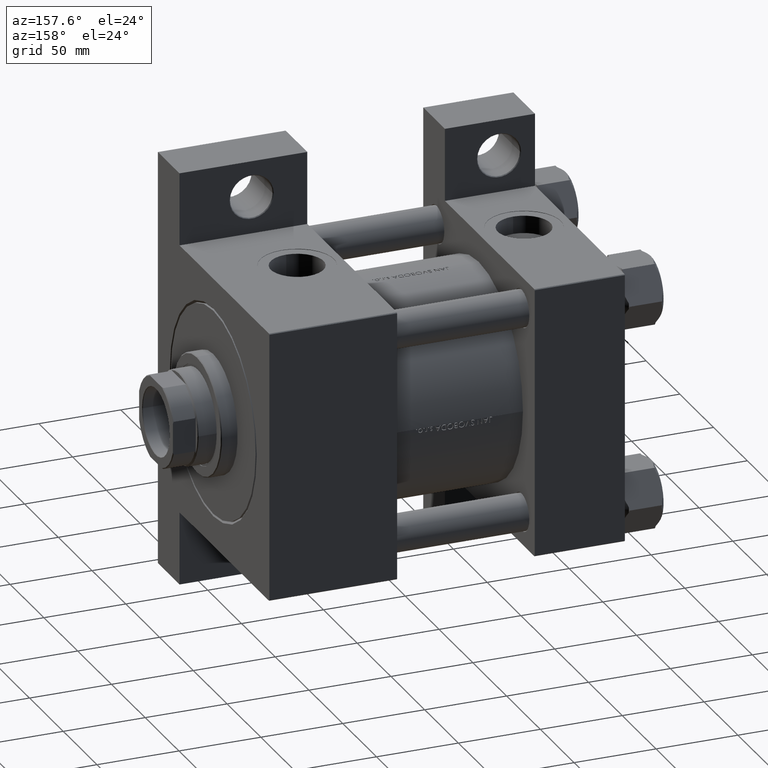
[diagram: clean part render]
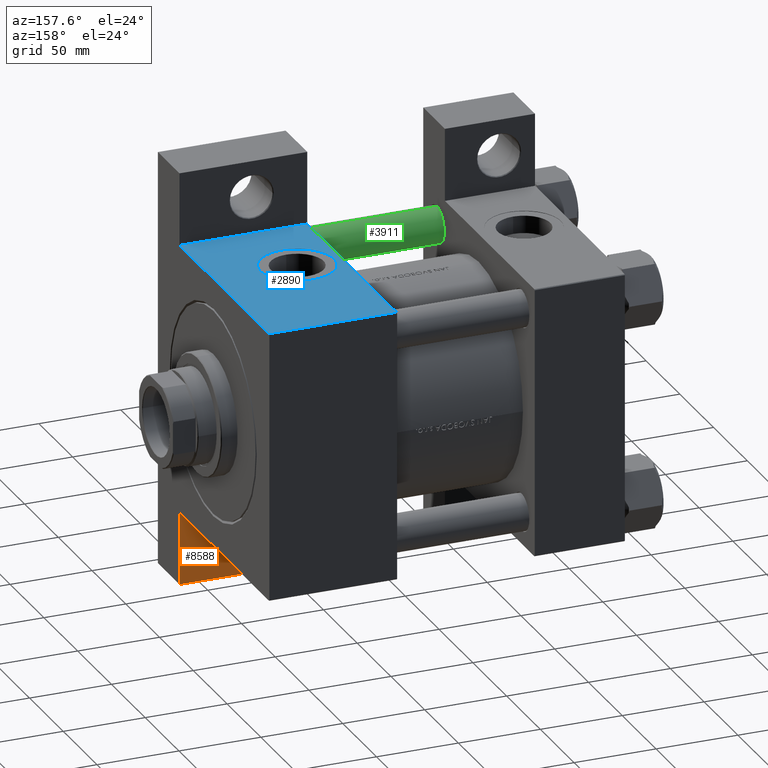
[diagram: same view with three faces highlighted in distinct colors, each labeled with its STEP entity id]
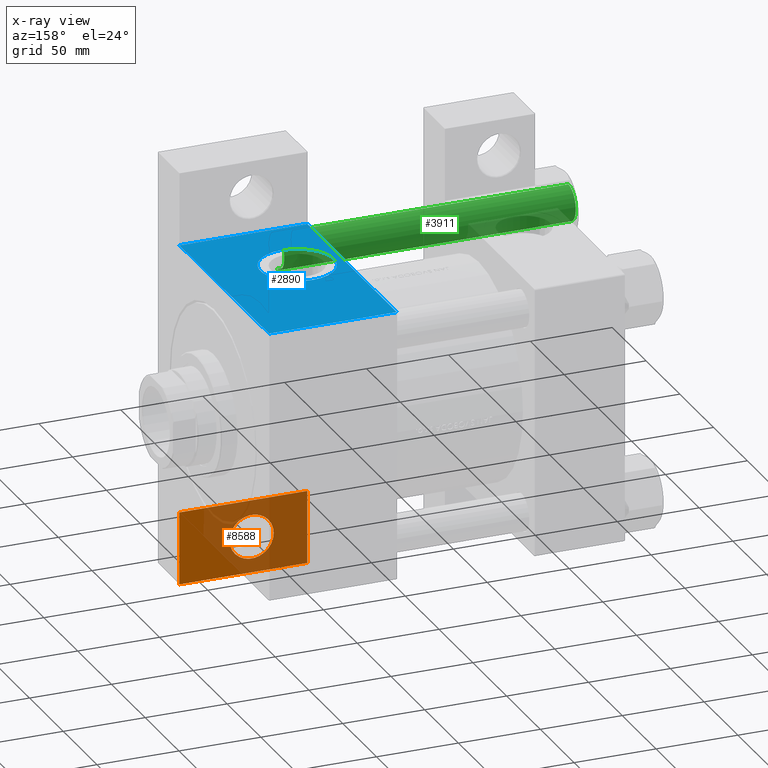
[diagram: x-ray of the same camera — body ghosted, the three highlighted faces saturated]
A machine part, auxiliary view with three faces highlighted in distinct colors.
The next image is the same camera in x-ray (body ghosted, the three faces saturated) — at least one of them is partly hidden behind the body in this view.
Their STEP definitions:

[orange] entity #8588 — the highlighted planar face has unit normal (0, 1, 0).
#34 = VERTEX_POINT ( 'NONE', #45799 ) ;
#143 = ORIENTED_EDGE ( 'NONE', *, *, #10108, .F. ) ;
#478 = LINE ( 'NONE', #10938, #21156 ) ;
#621 = ORIENTED_EDGE ( 'NONE', *, *, #12801, .T. ) ;
#1192 = DIRECTION ( 'NONE',  ( 6.237208003512117811E-16, 1.000000000000000000, -0.000000000000000000 ) ) ;
#1433 = CARTESIAN_POINT ( 'NONE',  ( 139.0000000000000284, 127.0000000000000000, -50.50000000000002842 ) ) ;
#2474 = DIRECTION ( 'NONE',  ( -0.000000000000000000, -0.000000000000000000, -1.000000000000000000 ) ) ;
#4309 = LINE ( 'NONE', #19132, #37377 ) ;
#4707 = AXIS2_PLACEMENT_3D ( 'NONE', #25398, #36108, #11048 ) ;
#5573 = DIRECTION ( 'NONE',  ( 1.000000000000000000, 0.000000000000000000, 0.000000000000000000 ) ) ;
#7390 = CARTESIAN_POINT ( 'NONE',  ( 217.0000000000000568, 82.49999999999995737, -50.50000000000002842 ) ) ;
#8265 = ORIENTED_EDGE ( 'NONE', *, *, #30773, .F. ) ;
#8588 = ADVANCED_FACE ( 'NONE', ( #10568, #48024 ), #29043, .T. ) ;
#9380 = CARTESIAN_POINT ( 'NONE',  ( 159.5005000000000166, 104.9999999999999858, -50.50000000000002842 ) ) ;
#9711 = CARTESIAN_POINT ( 'NONE',  ( 139.0000000000000284, 127.0000000000000000, -50.50000000000002842 ) ) ;
#10108 = EDGE_CURVE ( 'NONE', #34, #31720, #4309, .T. ) ;
#10568 = FACE_BOUND ( 'NONE', #34637, .T. ) ;
#10938 = CARTESIAN_POINT ( 'NONE',  ( 139.0000000000000284, 127.0000000000000000, -50.50000000000002842 ) ) ;
#11048 = DIRECTION ( 'NONE',  ( 1.000000000000000000, 0.000000000000000000, -0.000000000000000000 ) ) ;
#11717 = AXIS2_PLACEMENT_3D ( 'NONE', #24040, #34511, #5573 ) ;
#12655 = EDGE_LOOP ( 'NONE', ( #41618, #8265, #143, #13359 ) ) ;
#12801 = EDGE_CURVE ( 'NONE', #46655, #42610, #30343, .T. ) ;
#13359 = ORIENTED_EDGE ( 'NONE', *, *, #16805, .F. ) ;
#13633 = VECTOR ( 'NONE', #18195, 1000.000000000000000 ) ;
#16805 = EDGE_CURVE ( 'NONE', #44513, #34, #478, .T. ) ;
#16864 = EDGE_CURVE ( 'NONE', #29040, #44513, #26958, .T. ) ;
#18195 = DIRECTION ( 'NONE',  ( -1.000000000000000000, 7.116814260417666541E-16, -0.000000000000000000 ) ) ;
#18433 = CARTESIAN_POINT ( 'NONE',  ( 139.0000000000000000, 82.50000000000001421, -50.50000000000002842 ) ) ;
#19132 = CARTESIAN_POINT ( 'NONE',  ( 217.0000000000000568, 126.9999999999999432, -50.50000000000002842 ) ) ;
#21156 = VECTOR ( 'NONE', #44250, 1000.000000000000000 ) ;
#21177 = DIRECTION ( 'NONE',  ( 1.000000000000000000, 0.000000000000000000, 0.000000000000000000 ) ) ;
#24040 = CARTESIAN_POINT ( 'NONE',  ( 173.0000000000000284, 104.9999999999999858, -50.50000000000002842 ) ) ;
#24624 = CARTESIAN_POINT ( 'NONE',  ( 139.0000000000000000, 82.50000000000001421, -50.50000000000002842 ) ) ;
#25398 = CARTESIAN_POINT ( 'NONE',  ( 0.000000000000000000, 0.000000000000000000, -50.50000000000002842 ) ) ;
#25586 = EDGE_CURVE ( 'NONE', #42610, #46655, #41624, .T. ) ;
#26445 = LINE ( 'NONE', #18433, #13633 ) ;
#26958 = LINE ( 'NONE', #1433, #37508 ) ;
#29040 = VERTEX_POINT ( 'NONE', #24624 ) ;
#29043 = PLANE ( 'NONE',  #4707 ) ;
#30343 = CIRCLE ( 'NONE', #11717, 13.49949999999999761 ) ;
#30773 = EDGE_CURVE ( 'NONE', #31720, #29040, #26445, .T. ) ;
#31626 = CARTESIAN_POINT ( 'NONE',  ( 173.0000000000000284, 104.9999999999999858, -50.50000000000002842 ) ) ;
#31720 = VERTEX_POINT ( 'NONE', #7390 ) ;
#33089 = AXIS2_PLACEMENT_3D ( 'NONE', #31626, #2474, #21177 ) ;
#34511 = DIRECTION ( 'NONE',  ( -0.000000000000000000, -0.000000000000000000, -1.000000000000000000 ) ) ;
#34637 = EDGE_LOOP ( 'NONE', ( #36106, #621 ) ) ;
#36106 = ORIENTED_EDGE ( 'NONE', *, *, #25586, .T. ) ;
#36108 = DIRECTION ( 'NONE',  ( 0.000000000000000000, 0.000000000000000000, 1.000000000000000000 ) ) ;
#37147 = DIRECTION ( 'NONE',  ( 0.000000000000000000, -1.000000000000000000, 0.000000000000000000 ) ) ;
#37377 = VECTOR ( 'NONE', #37147, 1000.000000000000000 ) ;
#37508 = VECTOR ( 'NONE', #1192, 1000.000000000000000 ) ;
#38029 = CARTESIAN_POINT ( 'NONE',  ( 186.4995000000000118, 104.9999999999999858, -50.50000000000002842 ) ) ;
#41618 = ORIENTED_EDGE ( 'NONE', *, *, #16864, .F. ) ;
#41624 = CIRCLE ( 'NONE', #33089, 13.49949999999999761 ) ;
#42610 = VERTEX_POINT ( 'NONE', #38029 ) ;
#44250 = DIRECTION ( 'NONE',  ( 1.000000000000000000, -7.116814260417667527E-16, 0.000000000000000000 ) ) ;
#44513 = VERTEX_POINT ( 'NONE', #9711 ) ;
#45799 = CARTESIAN_POINT ( 'NONE',  ( 217.0000000000000568, 126.9999999999999432, -50.50000000000002842 ) ) ;
#46655 = VERTEX_POINT ( 'NONE', #9380 ) ;
#48024 = FACE_OUTER_BOUND ( 'NONE', #12655, .T. ) ;

[blue] entity #2890 — the highlighted planar face has unit normal (0, -0, -1).
#819 = CARTESIAN_POINT ( 'NONE',  ( 217.0000000000000284, -82.49999999999997158, 82.49999999999997158 ) ) ;
#883 = EDGE_CURVE ( 'NONE', #4520, #26915, #39291, .T. ) ;
#915 = LINE ( 'NONE', #15741, #5143 ) ;
#2221 = CARTESIAN_POINT ( 'NONE',  ( 166.0000000000000000, -82.49999999999998579, 1.387778780781445676E-14 ) ) ;
#2341 = CARTESIAN_POINT ( 'NONE',  ( 217.0000000000000284, -82.49999999999997158, 82.49999999999997158 ) ) ;
#2688 = VECTOR ( 'NONE', #17164, 1000.000000000000000 ) ;
#2805 = VERTEX_POINT ( 'NONE', #3751 ) ;
#2890 = ADVANCED_FACE ( 'NONE', ( #27307, #15876 ), #46030, .F. ) ;
#3751 = CARTESIAN_POINT ( 'NONE',  ( 139.0000000000000000, -82.49999999999997158, -50.50000000000002842 ) ) ;
#4520 = VERTEX_POINT ( 'NONE', #22304 ) ;
#5143 = VECTOR ( 'NONE', #27160, 1000.000000000000000 ) ;
#6811 = VERTEX_POINT ( 'NONE', #44536 ) ;
#7878 = VECTOR ( 'NONE', #22308, 1000.000000000000000 ) ;
#8357 = DIRECTION ( 'NONE',  ( 0.000000000000000000, 1.000000000000000000, -1.682156097916903834E-16 ) ) ;
#8876 = ORIENTED_EDGE ( 'NONE', *, *, #883, .F. ) ;
#10067 = EDGE_CURVE ( 'NONE', #2805, #26915, #14115, .T. ) ;
#10708 = DIRECTION ( 'NONE',  ( 0.000000000000000000, 0.000000000000000000, -1.000000000000000000 ) ) ;
#11094 = ORIENTED_EDGE ( 'NONE', *, *, #10067, .T. ) ;
#11127 = CARTESIAN_POINT ( 'NONE',  ( 139.0000000000000000, -82.49999999999997158, -50.50000000000002842 ) ) ;
#12474 = EDGE_CURVE ( 'NONE', #6811, #47042, #45187, .T. ) ;
#12710 = DIRECTION ( 'NONE',  ( 0.000000000000000000, 1.682156097916903834E-16, 1.000000000000000000 ) ) ;
#14115 = LINE ( 'NONE', #11127, #7878 ) ;
#15741 = CARTESIAN_POINT ( 'NONE',  ( 217.0000000000000284, -82.49999999999997158, 82.00000000000002842 ) ) ;
#15876 = FACE_OUTER_BOUND ( 'NONE', #46747, .T. ) ;
#17164 = DIRECTION ( 'NONE',  ( 0.000000000000000000, -1.682156097916903834E-16, -1.000000000000000000 ) ) ;
#17352 = CARTESIAN_POINT ( 'NONE',  ( 166.0000000000000000, -82.49999999999998579, 1.387778780781445676E-14 ) ) ;
#17941 = VERTEX_POINT ( 'NONE', #33774 ) ;
#19354 = ORIENTED_EDGE ( 'NONE', *, *, #43077, .T. ) ;
#21115 = LINE ( 'NONE', #27929, #44170 ) ;
#22304 = CARTESIAN_POINT ( 'NONE',  ( 217.0000000000000284, -82.49999999999997158, 82.00000000000002842 ) ) ;
#22308 = DIRECTION ( 'NONE',  ( 1.000000000000000000, -1.779203565104416882E-16, 0.000000000000000000 ) ) ;
#22326 = CARTESIAN_POINT ( 'NONE',  ( 217.0000000000000284, -82.50000000000000000, -50.50000000000002842 ) ) ;
#23980 = EDGE_CURVE ( 'NONE', #47042, #6811, #37705, .T. ) ;
#24145 = EDGE_LOOP ( 'NONE', ( #27661, #26764 ) ) ;
#24217 = AXIS2_PLACEMENT_3D ( 'NONE', #17352, #32167, #10708 ) ;
#26047 = AXIS2_PLACEMENT_3D ( 'NONE', #2221, #31863, #40371 ) ;
#26148 = EDGE_CURVE ( 'NONE', #4520, #17941, #915, .T. ) ;
#26764 = ORIENTED_EDGE ( 'NONE', *, *, #12474, .F. ) ;
#26915 = VERTEX_POINT ( 'NONE', #22326 ) ;
#27160 = DIRECTION ( 'NONE',  ( -1.000000000000000000, 0.000000000000000000, 0.000000000000000000 ) ) ;
#27307 = FACE_BOUND ( 'NONE', #24145, .T. ) ;
#27661 = ORIENTED_EDGE ( 'NONE', *, *, #23980, .F. ) ;
#27821 = AXIS2_PLACEMENT_3D ( 'NONE', #819, #8357, #12710 ) ;
#27929 = CARTESIAN_POINT ( 'NONE',  ( 139.0000000000000000, -82.49999999999997158, 82.49999999999997158 ) ) ;
#31809 = DIRECTION ( 'NONE',  ( 0.000000000000000000, -1.682156097916903834E-16, -1.000000000000000000 ) ) ;
#31863 = DIRECTION ( 'NONE',  ( 0.000000000000000000, -1.000000000000000000, -8.673617379884036705E-17 ) ) ;
#32167 = DIRECTION ( 'NONE',  ( 0.000000000000000000, -1.000000000000000000, -8.673617379884036705E-17 ) ) ;
#32236 = ORIENTED_EDGE ( 'NONE', *, *, #26148, .T. ) ;
#33774 = CARTESIAN_POINT ( 'NONE',  ( 139.0000000000000000, -82.49999999999997158, 82.00000000000002842 ) ) ;
#35485 = CARTESIAN_POINT ( 'NONE',  ( 166.0000000000000000, -82.49999999999998579, -22.49999999999996803 ) ) ;
#37705 = CIRCLE ( 'NONE', #26047, 22.49999999999998224 ) ;
#39291 = LINE ( 'NONE', #2341, #2688 ) ;
#40371 = DIRECTION ( 'NONE',  ( 0.000000000000000000, 0.000000000000000000, -1.000000000000000000 ) ) ;
#43077 = EDGE_CURVE ( 'NONE', #17941, #2805, #21115, .T. ) ;
#44170 = VECTOR ( 'NONE', #31809, 1000.000000000000000 ) ;
#44536 = CARTESIAN_POINT ( 'NONE',  ( 166.0000000000000000, -82.49999999999998579, 22.49999999999999645 ) ) ;
#45187 = CIRCLE ( 'NONE', #24217, 22.49999999999998224 ) ;
#46030 = PLANE ( 'NONE',  #27821 ) ;
#46747 = EDGE_LOOP ( 'NONE', ( #8876, #32236, #19354, #11094 ) ) ;
#47042 = VERTEX_POINT ( 'NONE', #35485 ) ;

[green] entity #3911 — the highlighted cylindrical surface (edge-blend (fillet) strip) has radius 11 mm, axis along (1, 0, 0).
#134 = DIRECTION ( 'NONE',  ( -0.000000000000000000, -0.000000000000000000, 1.000000000000000000 ) ) ;
#1795 = CARTESIAN_POINT ( 'NONE',  ( 0.000000000000000000, 0.000000000000000000, 179.0000000000000000 ) ) ;
#3312 = CARTESIAN_POINT ( 'NONE',  ( 11.00000000000000000, 1.347111479062088207E-15, 178.5000000000000853 ) ) ;
#3911 = ADVANCED_FACE ( 'NONE', ( #20494 ), #28505, .T. ) ;
#6122 = VECTOR ( 'NONE', #41205, 1000.000000000000000 ) ;
#6701 = CIRCLE ( 'NONE', #29212, 11.00000000000000000 ) ;
#7091 = ORIENTED_EDGE ( 'NONE', *, *, #43608, .T. ) ;
#11544 = LINE ( 'NONE', #34868, #6122 ) ;
#12071 = LINE ( 'NONE', #26905, #41734 ) ;
#13105 = DIRECTION ( 'NONE',  ( 1.000000000000000000, 0.000000000000000000, 0.000000000000000000 ) ) ;
#13278 = EDGE_CURVE ( 'NONE', #23254, #19528, #42881, .T. ) ;
#16233 = VERTEX_POINT ( 'NONE', #22469 ) ;
#19528 = VERTEX_POINT ( 'NONE', #40018 ) ;
#19583 = VERTEX_POINT ( 'NONE', #3312 ) ;
#20494 = FACE_OUTER_BOUND ( 'NONE', #45532, .T. ) ;
#21923 = AXIS2_PLACEMENT_3D ( 'NONE', #25668, #134, #44388 ) ;
#22469 = CARTESIAN_POINT ( 'NONE',  ( -11.00000000000000000, 0.000000000000000000, 178.5000000000000853 ) ) ;
#23254 = VERTEX_POINT ( 'NONE', #27615 ) ;
#24861 = DIRECTION ( 'NONE',  ( -1.000000000000000000, 0.000000000000000000, 0.000000000000000000 ) ) ;
#25668 = CARTESIAN_POINT ( 'NONE',  ( 0.000000000000000000, 0.000000000000000000, 0.5000000000001392220 ) ) ;
#26905 = CARTESIAN_POINT ( 'NONE',  ( 11.00000000000000000, 1.347111479062088207E-15, 179.0000000000000000 ) ) ;
#27615 = CARTESIAN_POINT ( 'NONE',  ( -11.00000000000000000, 0.000000000000000000, 0.5000000000001392220 ) ) ;
#27940 = DIRECTION ( 'NONE',  ( 0.000000000000000000, 0.000000000000000000, -1.000000000000000000 ) ) ;
#28183 = CARTESIAN_POINT ( 'NONE',  ( 0.000000000000000000, 0.000000000000000000, 178.5000000000000853 ) ) ;
#28505 = CYLINDRICAL_SURFACE ( 'NONE', #34077, 11.00000000000000000 ) ;
#29212 = AXIS2_PLACEMENT_3D ( 'NONE', #28183, #27940, #13105 ) ;
#33714 = EDGE_CURVE ( 'NONE', #19583, #16233, #6701, .T. ) ;
#33730 = DIRECTION ( 'NONE',  ( -0.000000000000000000, -0.000000000000000000, -1.000000000000000000 ) ) ;
#34077 = AXIS2_PLACEMENT_3D ( 'NONE', #1795, #36051, #24861 ) ;
#34722 = ORIENTED_EDGE ( 'NONE', *, *, #33714, .T. ) ;
#34868 = CARTESIAN_POINT ( 'NONE',  ( -11.00000000000000000, 0.000000000000000000, 179.0000000000000000 ) ) ;
#36051 = DIRECTION ( 'NONE',  ( -0.000000000000000000, -0.000000000000000000, -1.000000000000000000 ) ) ;
#36345 = ORIENTED_EDGE ( 'NONE', *, *, #13278, .T. ) ;
#36963 = EDGE_CURVE ( 'NONE', #19583, #19528, #12071, .T. ) ;
#40018 = CARTESIAN_POINT ( 'NONE',  ( 11.00000000000000000, 1.347111479062088207E-15, 0.5000000000001392220 ) ) ;
#40785 = ORIENTED_EDGE ( 'NONE', *, *, #36963, .F. ) ;
#41205 = DIRECTION ( 'NONE',  ( -0.000000000000000000, -0.000000000000000000, -1.000000000000000000 ) ) ;
#41734 = VECTOR ( 'NONE', #33730, 1000.000000000000000 ) ;
#42881 = CIRCLE ( 'NONE', #21923, 11.00000000000000000 ) ;
#43608 = EDGE_CURVE ( 'NONE', #16233, #23254, #11544, .T. ) ;
#44388 = DIRECTION ( 'NONE',  ( 1.000000000000000000, 0.000000000000000000, 0.000000000000000000 ) ) ;
#45532 = EDGE_LOOP ( 'NONE', ( #40785, #34722, #7091, #36345 ) ) ;